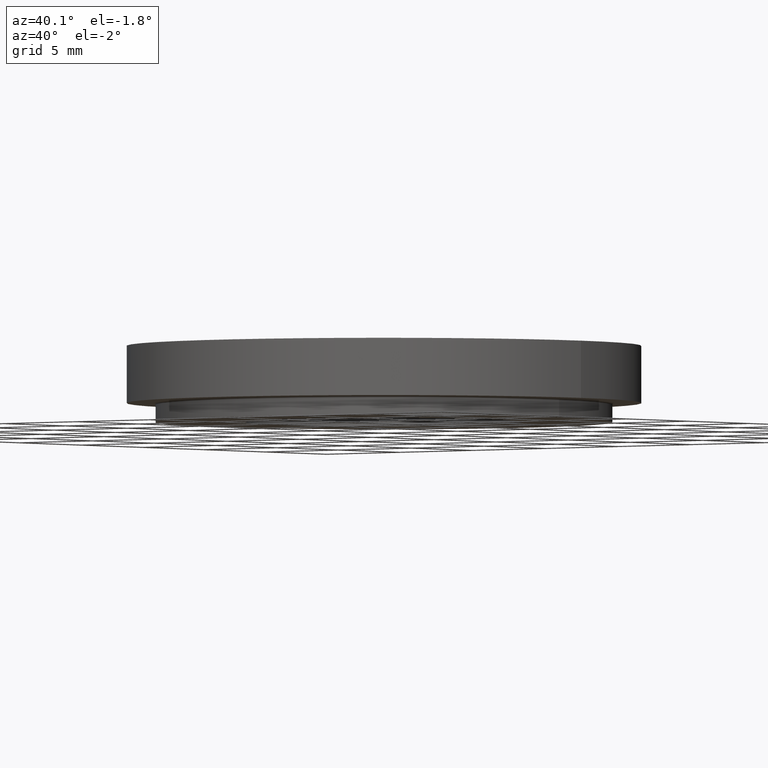
[diagram: clean part render]
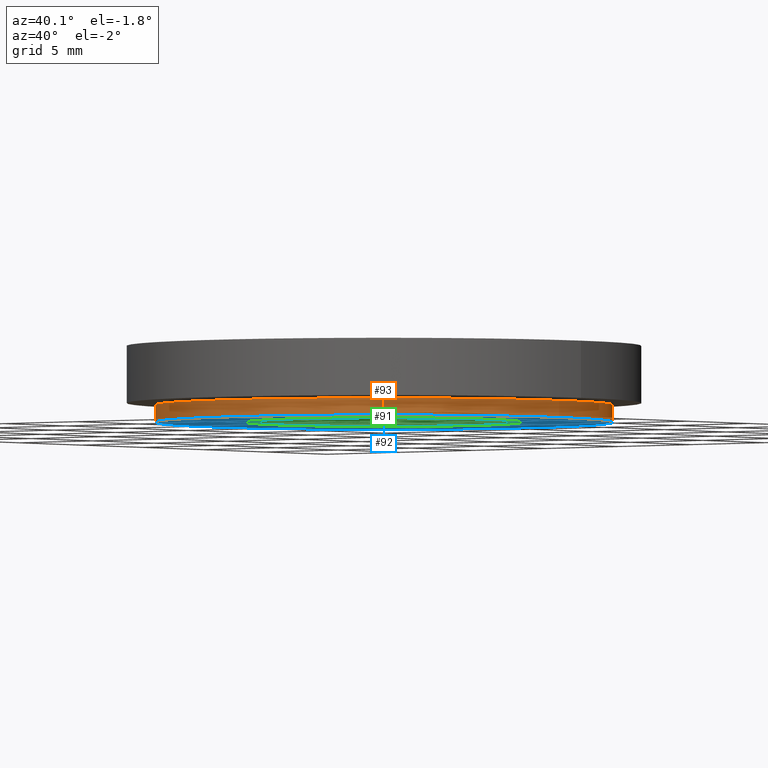
[diagram: same view with three faces highlighted in distinct colors, each labeled with its STEP entity id]
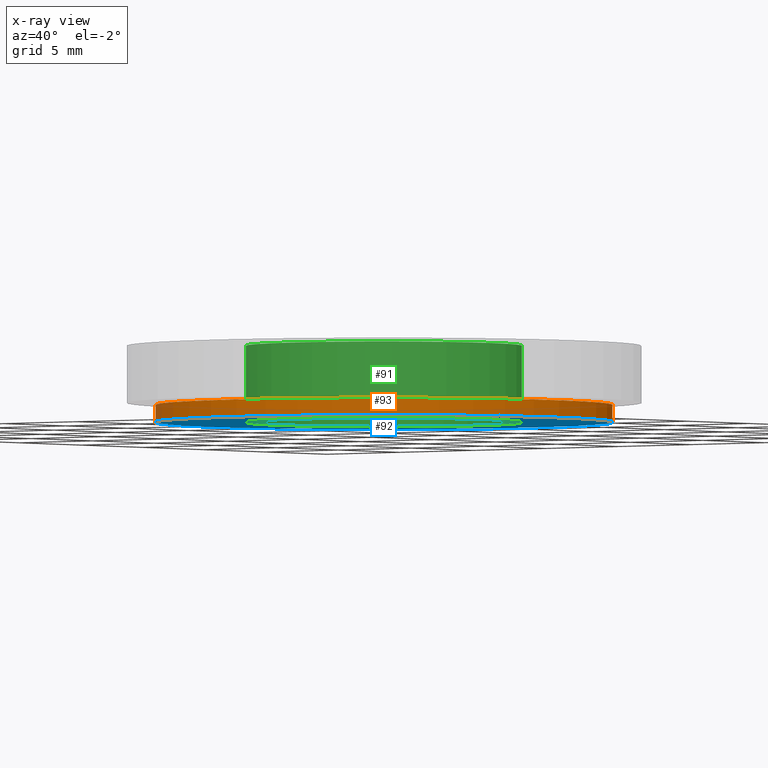
[diagram: x-ray of the same camera — body ghosted, the three highlighted faces saturated]
A machine part, auxiliary view with three faces highlighted in distinct colors.
The next image is the same camera in x-ray (body ghosted, the three faces saturated) — at least one of them is partly hidden behind the body in this view.
Their STEP definitions:

[orange] entity #93 — the highlighted cylindrical surface (bore or boss wall) has radius 12 mm, axis along (0, 0, -1).
#22=CYLINDRICAL_SURFACE('',#117,12.);
#30=ORIENTED_EDGE('',*,*,#42,.F.);
#31=ORIENTED_EDGE('',*,*,#41,.T.);
#41=EDGE_CURVE('',#48,#48,#55,.T.);
#42=EDGE_CURVE('',#49,#49,#56,.T.);
#48=VERTEX_POINT('',#165);
#49=VERTEX_POINT('',#168);
#55=CIRCLE('',#116,12.);
#56=CIRCLE('',#118,12.);
#65=EDGE_LOOP('',(#30));
#66=EDGE_LOOP('',(#31));
#79=FACE_BOUND('',#65,.T.);
#80=FACE_BOUND('',#66,.T.);
#93=ADVANCED_FACE('',(#79,#80),#22,.T.);
#116=AXIS2_PLACEMENT_3D('',#164,#138,#139);
#117=AXIS2_PLACEMENT_3D('',#166,#140,#141);
#118=AXIS2_PLACEMENT_3D('',#167,#142,#143);
#138=DIRECTION('',(0.,0.,1.));
#139=DIRECTION('',(1.,0.,0.));
#140=DIRECTION('',(0.,0.,-1.));
#141=DIRECTION('',(1.,0.,0.));
#142=DIRECTION('',(0.,0.,1.));
#143=DIRECTION('',(1.,0.,0.));
#164=CARTESIAN_POINT('',(0.,0.,0.));
#165=CARTESIAN_POINT('',(12.,0.,0.));
#166=CARTESIAN_POINT('',(0.,0.,60.));
#167=CARTESIAN_POINT('',(0.,0.,0.9));
#168=CARTESIAN_POINT('',(12.,0.,0.9));

[blue] entity #92 — the highlighted planar face has unit normal (0, 0, -1).
#28=ORIENTED_EDGE('',*,*,#41,.F.);
#29=ORIENTED_EDGE('',*,*,#40,.T.);
#40=EDGE_CURVE('',#47,#47,#54,.T.);
#41=EDGE_CURVE('',#48,#48,#55,.T.);
#47=VERTEX_POINT('',#162);
#48=VERTEX_POINT('',#165);
#54=CIRCLE('',#114,7.25);
#55=CIRCLE('',#116,12.);
#63=EDGE_LOOP('',(#28));
#64=EDGE_LOOP('',(#29));
#77=FACE_BOUND('',#63,.T.);
#78=FACE_BOUND('',#64,.T.);
#88=PLANE('',#115);
#92=ADVANCED_FACE('',(#77,#78),#88,.T.);
#114=AXIS2_PLACEMENT_3D('',#161,#134,#135);
#115=AXIS2_PLACEMENT_3D('',#163,#136,#137);
#116=AXIS2_PLACEMENT_3D('',#164,#138,#139);
#134=DIRECTION('',(0.,0.,1.));
#135=DIRECTION('',(1.,0.,0.));
#136=DIRECTION('',(0.,0.,-1.));
#137=DIRECTION('',(-1.,0.,0.));
#138=DIRECTION('',(0.,0.,1.));
#139=DIRECTION('',(1.,0.,0.));
#161=CARTESIAN_POINT('',(0.,0.,0.));
#162=CARTESIAN_POINT('',(7.25,0.,0.));
#163=CARTESIAN_POINT('',(12.,0.,1.0842021724855E-16));
#164=CARTESIAN_POINT('',(0.,0.,0.));
#165=CARTESIAN_POINT('',(12.,0.,0.));

[green] entity #91 — the highlighted cylindrical surface (bore or boss wall) has radius 7.25 mm, axis along (0, 0, -1).
#21=CYLINDRICAL_SURFACE('',#113,7.25);
#26=ORIENTED_EDGE('',*,*,#40,.F.);
#27=ORIENTED_EDGE('',*,*,#38,.T.);
#38=EDGE_CURVE('',#45,#45,#52,.T.);
#40=EDGE_CURVE('',#47,#47,#54,.T.);
#45=VERTEX_POINT('',#157);
#47=VERTEX_POINT('',#162);
#52=CIRCLE('',#111,7.25);
#54=CIRCLE('',#114,7.25);
#61=EDGE_LOOP('',(#26));
#62=EDGE_LOOP('',(#27));
#75=FACE_BOUND('',#61,.T.);
#76=FACE_BOUND('',#62,.T.);
#91=ADVANCED_FACE('',(#75,#76),#21,.F.);
#111=AXIS2_PLACEMENT_3D('',#156,#128,#129);
#113=AXIS2_PLACEMENT_3D('',#160,#132,#133);
#114=AXIS2_PLACEMENT_3D('',#161,#134,#135);
#128=DIRECTION('',(0.,0.,1.));
#129=DIRECTION('',(1.,0.,0.));
#132=DIRECTION('',(0.,0.,-1.));
#133=DIRECTION('',(1.,0.,0.));
#134=DIRECTION('',(0.,0.,1.));
#135=DIRECTION('',(1.,0.,0.));
#156=CARTESIAN_POINT('',(0.,0.,4.));
#157=CARTESIAN_POINT('',(7.25,0.,4.));
#160=CARTESIAN_POINT('',(0.,0.,60.));
#161=CARTESIAN_POINT('',(0.,0.,0.));
#162=CARTESIAN_POINT('',(7.25,0.,0.));